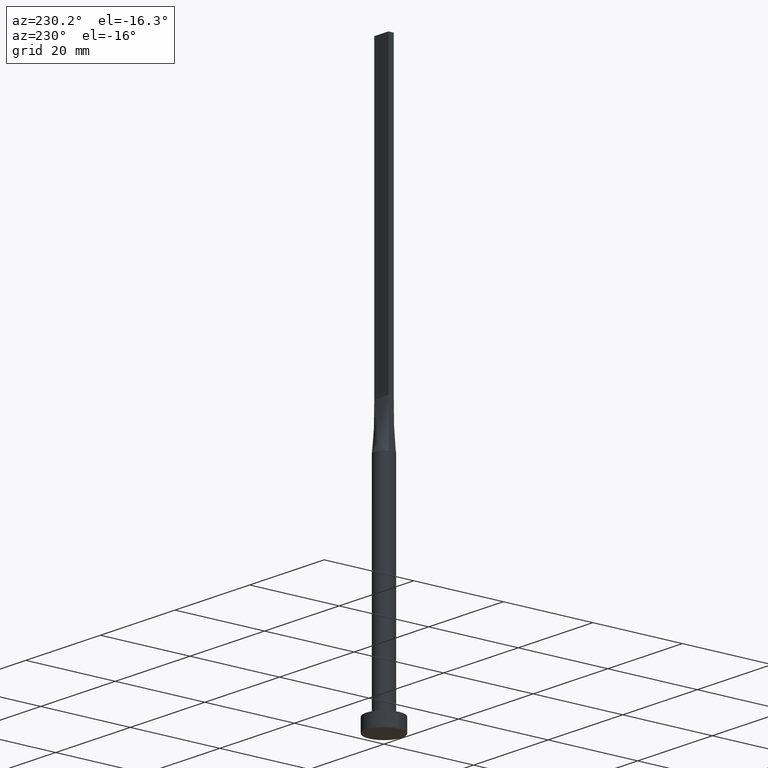
[diagram: clean part render]
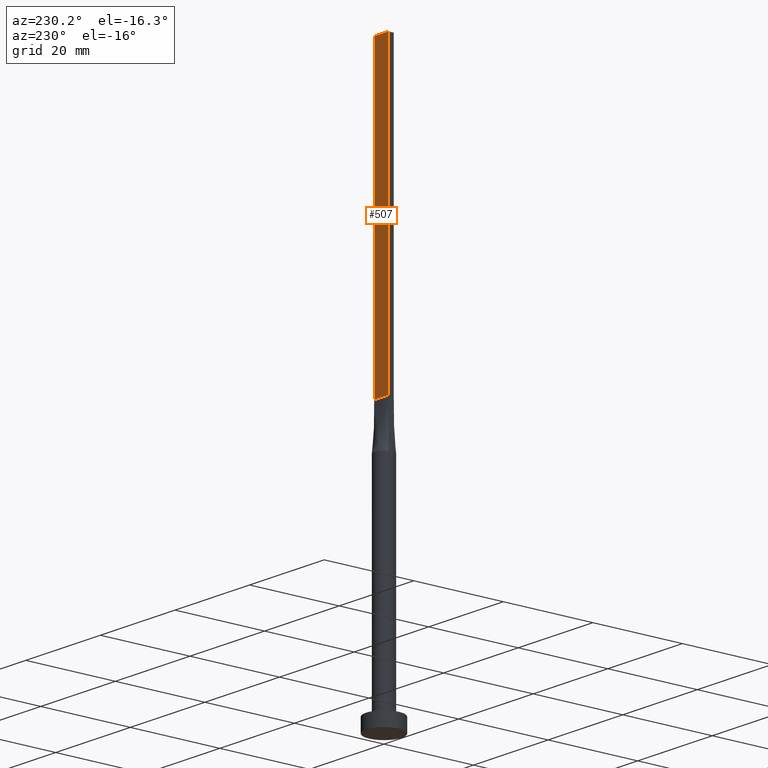
[diagram: same view with one face highlighted and labeled with its STEP entity id]
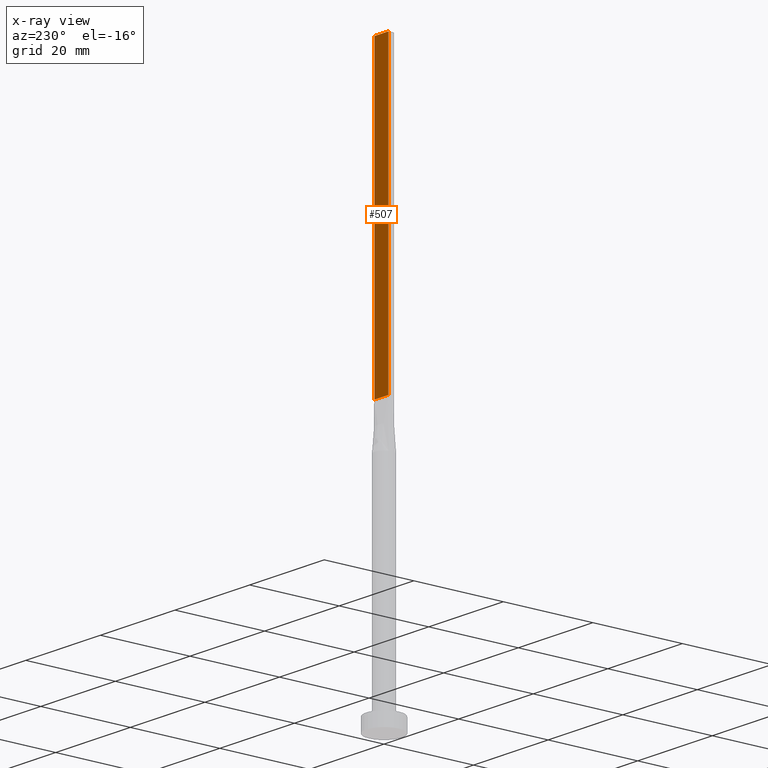
[diagram: x-ray of the same camera — body ghosted, the highlighted face saturated]
A machine part, auxiliary view. The second image highlights one B-rep face of the part: STEP entity #507.
The next image is the same camera in x-ray: the body ghosted, the highlighted face saturated — about 0% of this face is hidden behind the body in this view.
In plain terms, the highlighted planar face has unit normal (0, -1, 0).
Its self-contained STEP definition (entity closure, byte-faithful):
#19 = DIRECTION ( 'NONE',  ( -1.000000000000000000, -0.000000000000000000, -0.000000000000000000 ) ) ;
#22 = VERTEX_POINT ( 'NONE', #385 ) ;
#30 = DIRECTION ( 'NONE',  ( 0.000000000000000000, -1.000000000000000000, 0.000000000000000000 ) ) ;
#63 = ORIENTED_EDGE ( 'NONE', *, *, #549, .T. ) ;
#77 = CARTESIAN_POINT ( 'NONE',  ( -1.899999999999999689, 0.6000000000000001998, 60.00000000000000711 ) ) ;
#78 = VERTEX_POINT ( 'NONE', #77 ) ;
#96 = EDGE_LOOP ( 'NONE', ( #63, #393, #312, #380 ) ) ;
#113 = VECTOR ( 'NONE', #340, 1000.000000000000000 ) ;
#117 = DIRECTION ( 'NONE',  ( -0.000000000000000000, -0.000000000000000000, -1.000000000000000000 ) ) ;
#118 = CARTESIAN_POINT ( 'NONE',  ( 1.899999999999999689, 0.6000000000000001998, 125.0000000000000000 ) ) ;
#124 = PLANE ( 'NONE',  #321 ) ;
#139 = VECTOR ( 'NONE', #181, 1000.000000000000000 ) ;
#151 = CARTESIAN_POINT ( 'NONE',  ( 1.899999999999999689, 0.6000000000000001998, 60.00000000000000711 ) ) ;
#173 = LINE ( 'NONE', #118, #113 ) ;
#181 = DIRECTION ( 'NONE',  ( -0.000000000000000000, -0.000000000000000000, -1.000000000000000000 ) ) ;
#183 = LINE ( 'NONE', #414, #139 ) ;
#233 = EDGE_CURVE ( 'NONE', #298, #22, #173, .T. ) ;
#236 = CARTESIAN_POINT ( 'NONE',  ( 1.899999999999999689, 0.6000000000000001998, 125.0000000000000000 ) ) ;
#253 = DIRECTION ( 'NONE',  ( 0.000000000000000000, -0.000000000000000000, -1.000000000000000000 ) ) ;
#281 = VERTEX_POINT ( 'NONE', #151 ) ;
#298 = VERTEX_POINT ( 'NONE', #236 ) ;
#312 = ORIENTED_EDGE ( 'NONE', *, *, #233, .F. ) ;
#321 = AXIS2_PLACEMENT_3D ( 'NONE', #454, #30, #253 ) ;
#326 = VECTOR ( 'NONE', #117, 1000.000000000000000 ) ;
#339 = LINE ( 'NONE', #532, #326 ) ;
#340 = DIRECTION ( 'NONE',  ( -1.000000000000000000, 0.000000000000000000, 0.000000000000000000 ) ) ;
#342 = CARTESIAN_POINT ( 'NONE',  ( -1.899999999999999689, 0.6000000000000001998, 60.00000000000000711 ) ) ;
#345 = FACE_OUTER_BOUND ( 'NONE', #96, .T. ) ;
#357 = LINE ( 'NONE', #342, #477 ) ;
#380 = ORIENTED_EDGE ( 'NONE', *, *, #578, .T. ) ;
#385 = CARTESIAN_POINT ( 'NONE',  ( -1.899999999999999689, 0.6000000000000001998, 125.0000000000000000 ) ) ;
#393 = ORIENTED_EDGE ( 'NONE', *, *, #461, .F. ) ;
#414 = CARTESIAN_POINT ( 'NONE',  ( 1.899999999999999689, 0.6000000000000001998, 125.0000000000000000 ) ) ;
#454 = CARTESIAN_POINT ( 'NONE',  ( 1.899999999999999689, 0.6000000000000001998, 125.0000000000000000 ) ) ;
#461 = EDGE_CURVE ( 'NONE', #22, #78, #339, .T. ) ;
#477 = VECTOR ( 'NONE', #19, 1000.000000000000000 ) ;
#507 = ADVANCED_FACE ( 'NONE', ( #345 ), #124, .F. ) ;
#532 = CARTESIAN_POINT ( 'NONE',  ( -1.899999999999999689, 0.6000000000000001998, 125.0000000000000000 ) ) ;
#549 = EDGE_CURVE ( 'NONE', #281, #78, #357, .T. ) ;
#578 = EDGE_CURVE ( 'NONE', #298, #281, #183, .T. ) ;